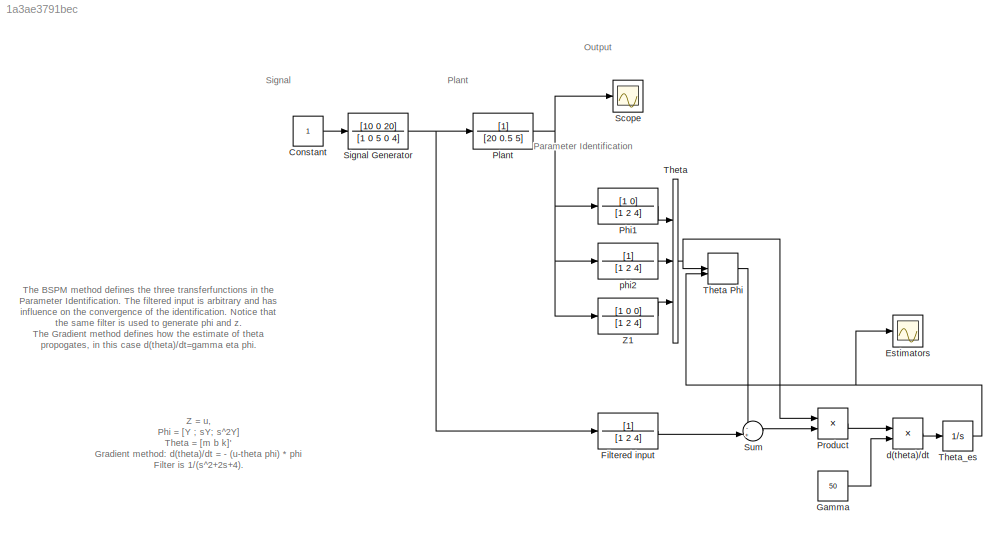
MODEL slx_1a3ae3791bec
KIND model
CONFIG AbsTol = auto
CONFIG EnableMultiTasking = off
CONFIG FixedStep = auto
CONFIG MaxStep = auto
CONFIG MinStep = auto
CONFIG RelTol = 1e-3
CONFIG SampleTimeConstraint = Unconstrained
CONFIG Solver = ode23tb
CONFIG SolverName = ode23tb
CONFIG StartTime = 0.0
CONFIG StopTime = 1000
BLOCK [Constant] Constant
BLOCK [Scope] Estimators
  NumInputPorts = 1
  Ports = [1]
  ScopeSpecificationString = Simulink.scopes.TimeScopeBlockCfg('CurrentConfiguration', extmgr.ConfigurationSet(extmgr.Configuration('Core','General UI',true),extmgr.Configuration('Core','Source UI',true),extmgr.Configuration('Sources','WiredSimulink',true,'DataLoggingVariableName','ScopeData1'),extmgr.Configuration('Visuals','Time Domain',true,'SerializedDisplays',{struct('MinYLimReal','-9.86648','MaxYLimReal','26.63891','YLa...<+1388ch>
BLOCK [TransferFcn] Filtered input 
  Denominator = [1 2 4]
BLOCK [Constant] Gamma 
  Value = 50
BLOCK [TransferFcn] Phi1 
  Denominator = [1 2 4]
  Numerator = [1 0]
BLOCK [TransferFcn] Plant
  Denominator = [20 0.5 5]
BLOCK [Product] Product
  InputSameDT = off
  OutDataTypeStr = Inherit: Inherit via internal rule
  Ports = [2, 1]
  RndMeth = Floor
  SaturateOnIntegerOverflow = off
BLOCK [Scope] Scope
  NumInputPorts = 1
  Ports = [1]
  ScopeSpecificationString = Simulink.scopes.TimeScopeBlockCfg('CurrentConfiguration', extmgr.ConfigurationSet(extmgr.Configuration('Core','General UI',true),extmgr.Configuration('Core','Source UI',true),extmgr.Configuration('Sources','WiredSimulink',true),extmgr.Configuration('Visuals','Time Domain',true,'SerializedDisplays',{struct('MinYLimReal','-0.29932','MaxYLimReal','2.69388','YLabelReal','','MinYLimMag','0.00000','MaxY...<+1325ch>
BLOCK [TransferFcn] Signal Generator
  Denominator = [1 0 5 0 4]
  Numerator = [10 0 20]
BLOCK [Sum] Sum
  IconShape = round
  InputSameDT = off
  Inputs = -+|
  OutDataTypeStr = Inherit: Inherit via internal rule
  Ports = [2, 1]
  SaturateOnIntegerOverflow = off
BLOCK [Concatenate] Theta
  NumInputs = 3
  Ports = [3, 1]
BLOCK [DotProduct] Theta Phi
  OutDataTypeStr = Inherit: Inherit via internal rule
BLOCK [Integrator] Theta_es
  Ports = [1, 1]
BLOCK [TransferFcn] Z1
  Denominator = [1 2 4]
  Numerator = [1 0 0]
BLOCK [Product] d(theta)//dt
  InputSameDT = off
  OutDataTypeStr = Inherit: Inherit via internal rule
  Ports = [2, 1]
  RndMeth = Floor
  SaturateOnIntegerOverflow = off
BLOCK [TransferFcn] phi2
  Denominator = [1 2 4]
ANNOTATION (root): Output
ANNOTATION (root): Parameter Identification
ANNOTATION (root): Plant
ANNOTATION (root): Signal
ANNOTATION (root): The BSPM method defines the three transferfunctions in the Parameter Identification. The filtered input is arbitrary and has influence on the convergence of the identification. Notice that the same filter is used to generate phi and z. The Gradient method defines how the estimate of theta propogates, in this case d(theta)/dt=gamma eta phi.
ANNOTATION (root): Z = u, Phi = [Y ; sY; s^2Y] Theta = [m b k]' Gradient method: d(theta)/dt = - (u-theta phi) * phi Filter is 1/(s^2+2s+4).
LINE Constant:1 -> Signal Generator:1
LINE Filtered input :1 -> Sum:2
LINE Gamma :1 -> d(theta)//dt:2
LINE Phi1 :1 -> Theta:1
NET Plant:1 -> Phi1 :1, Scope:1, Z1:1, phi2:1
LINE Product:1 -> d(theta)//dt:1
NET Signal Generator:1 -> Filtered input :1, Plant:1
LINE Sum:1 -> Product:2
LINE Theta Phi:1 -> Sum:1
NET Theta:1 -> Product:1, Theta Phi:1
NET Theta_es:1 -> Estimators:1, Theta Phi:2
LINE Z1:1 -> Theta:3
LINE d(theta)//dt:1 -> Theta_es:1
LINE phi2:1 -> Theta:2
note: NET lines group one-source signal fan-out (src -> all destinations, sorted); 1:1 wires keep LINE
